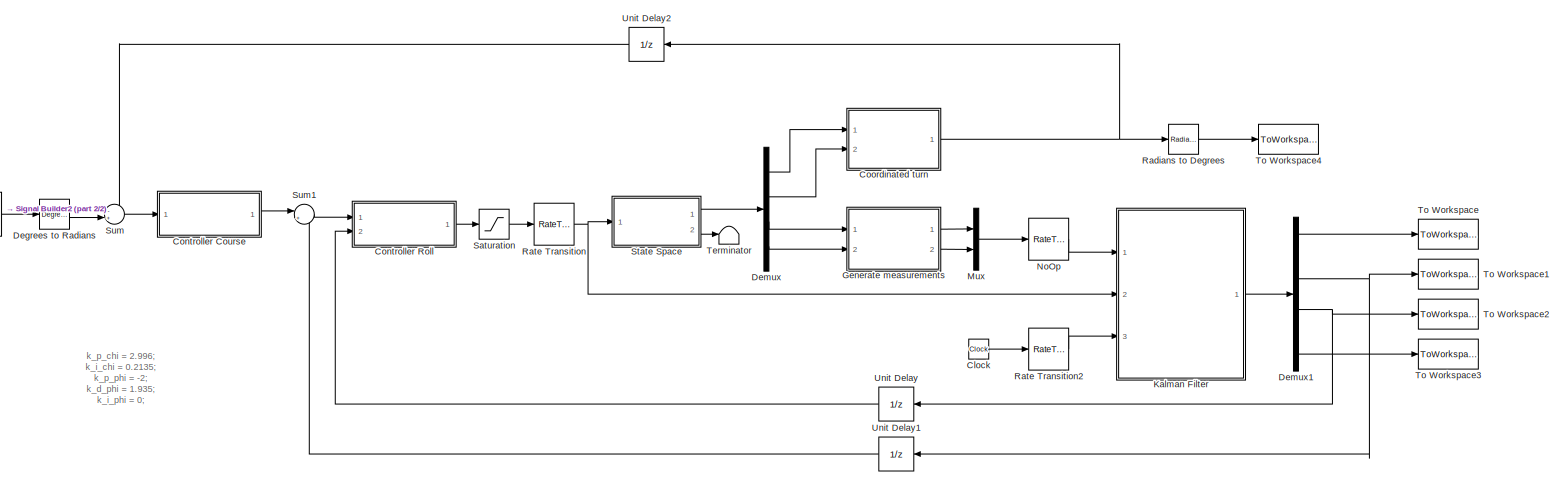
[diagram: root canvas - part 1/2, most of the canvas]
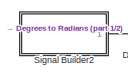
[diagram: root canvas - part 2/2, middle left region]
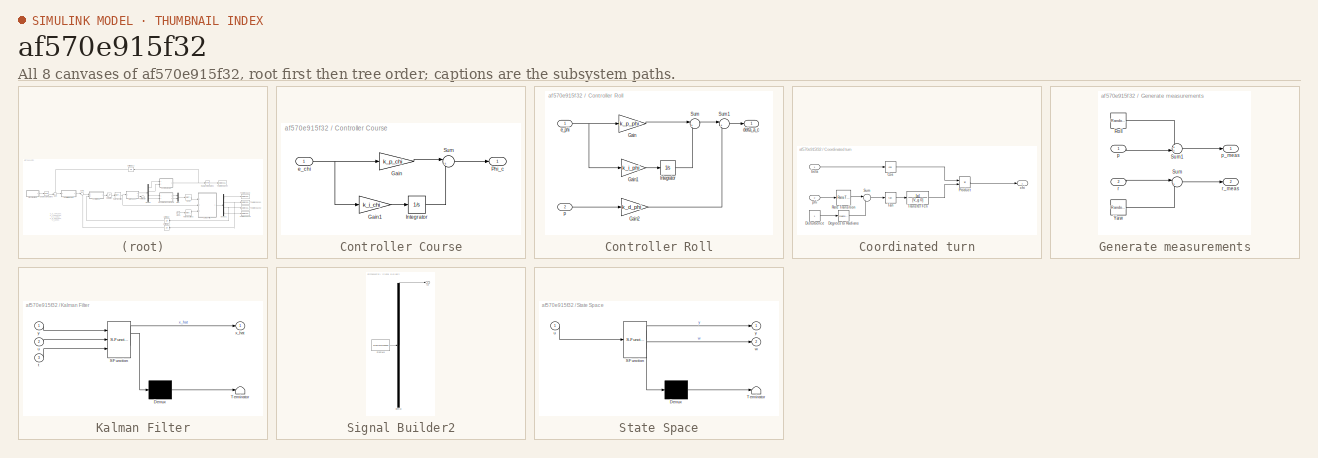
[diagram: thumbnail index - all 8 canvases of the model, root first then tree order]
MODEL slx_af570e915f32
KIND model
CONFIG AbsTol = auto
CONFIG EnableMultiTasking = off
CONFIG FixedStep = auto
CONFIG MaxStep = auto
CONFIG MinStep = auto
CONFIG RelTol = 1e-3
CONFIG SampleTimeConstraint = Unconstrained
CONFIG Solver = VariableStepAuto
CONFIG SolverName = VariableStepAuto
CONFIG StartTime = 0.0
CONFIG StopTime = 200
BLOCK [Clock] Clock
BLOCK [SubSystem] Controller Course
  Ports = [1, 1]
  RequestExecContextInheritance = off
BLOCK [Gain] Controller Course/Gain
  Gain = k_p_chi
  OutDataTypeStr = Inherit: Inherit via internal rule
  ParamDataTypeStr = Inherit: Inherit via internal rule
  SaturateOnIntegerOverflow = off
BLOCK [Gain] Controller Course/Gain1
  Gain = k_i_chi
  OutDataTypeStr = Inherit: Inherit via internal rule
  ParamDataTypeStr = Inherit: Inherit via internal rule
  SaturateOnIntegerOverflow = off
BLOCK [Integrator] Controller Course/Integrator
  Ports = [1, 1]
BLOCK [Outport] Controller Course/Phi_c
  IconDisplay = Port number
BLOCK [Sum] Controller Course/Sum
  IconShape = round
  InputSameDT = off
  Inputs = |++
  OutDataTypeStr = Inherit: Inherit via internal rule
  Ports = [2, 1]
  SaturateOnIntegerOverflow = off
BLOCK [Inport] Controller Course/e_chi
  IconDisplay = Port number
BLOCK [SubSystem] Controller Roll
  Ports = [2, 1]
  RequestExecContextInheritance = off
BLOCK [Gain] Controller Roll/Gain
  Gain = k_p_phi
  OutDataTypeStr = Inherit: Inherit via internal rule
  ParamDataTypeStr = Inherit: Inherit via internal rule
  SaturateOnIntegerOverflow = off
BLOCK [Gain] Controller Roll/Gain1
  Gain = k_i_phi
  OutDataTypeStr = Inherit: Inherit via internal rule
  ParamDataTypeStr = Inherit: Inherit via internal rule
  SaturateOnIntegerOverflow = off
BLOCK [Gain] Controller Roll/Gain2
  Gain = k_d_phi
  OutDataTypeStr = Inherit: Inherit via internal rule
  ParamDataTypeStr = Inherit: Inherit via internal rule
  SaturateOnIntegerOverflow = off
BLOCK [Integrator] Controller Roll/Integrator
  Ports = [1, 1]
BLOCK [Sum] Controller Roll/Sum
  IconShape = round
  InputSameDT = off
  Inputs = |++
  OutDataTypeStr = Inherit: Inherit via internal rule
  Ports = [2, 1]
  SaturateOnIntegerOverflow = off
BLOCK [Sum] Controller Roll/Sum1
  IconShape = round
  InputSameDT = off
  Inputs = |+-
  OutDataTypeStr = Inherit: Inherit via internal rule
  Ports = [2, 1]
  SaturateOnIntegerOverflow = off
BLOCK [Outport] Controller Roll/delta_a_c
  IconDisplay = Port number
BLOCK [Inport] Controller Roll/e_phi
  IconDisplay = Port number
BLOCK [Inport] Controller Roll/p
  IconDisplay = Port number
  Port = 2
BLOCK [SubSystem] Coordinated turn
  Ports = [2, 1]
  RequestExecContextInheritance = off
BLOCK [Trigonometry] Coordinated turn/Cos
  Operator = cos
  Ports = [1, 1]
BLOCK [Reference] Coordinated turn/Degrees to Radians  REF=simulink_extras/Transformations/Degrees to
Radians
  Ports = [1, 1]
  SourceBlock = simulink_extras/Transformations/Degrees to\nRadians
  SourceProductBaseCode = SL
  SourceProductName = Simulink
  SourceType = DegreesToRadians
BLOCK [Constant] Coordinated turn/Disturbence
BLOCK [Product] Coordinated turn/Product
  InputSameDT = off
  OutDataTypeStr = Inherit: Inherit via internal rule
  Ports = [2, 1]
  RndMeth = Floor
  SaturateOnIntegerOverflow = off
BLOCK [RateTransition] Coordinated turn/Rate Transition
BLOCK [Sum] Coordinated turn/Sum
  IconShape = round
  InputSameDT = off
  Inputs = |++
  OutDataTypeStr = Inherit: Inherit via internal rule
  Ports = [2, 1]
  SaturateOnIntegerOverflow = off
BLOCK [Trigonometry] Coordinated turn/Tan
  Operator = tan
  Ports = [1, 1]
BLOCK [TransferFcn] Coordinated turn/Transfer Fcn
  Denominator = [V_g 0]
  Numerator = [g]
BLOCK [Inport] Coordinated turn/beta
  IconDisplay = Port number
BLOCK [Outport] Coordinated turn/chi
  IconDisplay = Port number
BLOCK [Inport] Coordinated turn/phi
  IconDisplay = Port number
  Port = 2
BLOCK [Reference] Degrees to Radians  REF=simulink_extras/Transformations/Degrees to
Radians
  Ports = [1, 1]
  SourceBlock = simulink_extras/Transformations/Degrees to\nRadians
  SourceProductBaseCode = SL
  SourceProductName = Simulink
  SourceType = DegreesToRadians
BLOCK [Demux] Demux
  DisplayOption = bar
  Ports = [1, 4]
BLOCK [Demux] Demux1
  DisplayOption = bar
  Ports = [1, 4]
BLOCK [SubSystem] Generate measurements
  Ports = [2, 2]
  RequestExecContextInheritance = off
BLOCK [RandomNumber] Generate measurements/Roll
  SampleTime = 0.01
  Variance = (0.2*pi/180)^2
BLOCK [Sum] Generate measurements/Sum
  IconShape = round
  InputSameDT = off
  Inputs = |++
  OutDataTypeStr = Inherit: Inherit via internal rule
  Ports = [2, 1]
  SaturateOnIntegerOverflow = off
BLOCK [Sum] Generate measurements/Sum1
  IconShape = round
  InputSameDT = off
  Inputs = ++|
  OutDataTypeStr = Inherit: Inherit via internal rule
  Ports = [2, 1]
  SaturateOnIntegerOverflow = off
BLOCK [RandomNumber] Generate measurements/Yaw
  SampleTime = 0.01
  Variance = (0.2*pi/180)^2
BLOCK [Inport] Generate measurements/p
  IconDisplay = Port number
BLOCK [Outport] Generate measurements/p_meas
  IconDisplay = Port number
BLOCK [Inport] Generate measurements/r
  IconDisplay = Port number
  Port = 2
BLOCK [Outport] Generate measurements/r_meas
  IconDisplay = Port number
  Port = 2
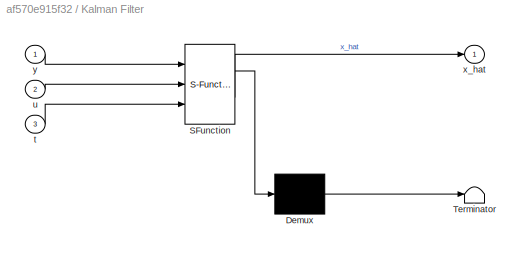
BLOCK [SubSystem] Kalman Filter
  ErrorFcn = Stateflow.Translate.translate
  PermitHierarchicalResolution = ExplicitOnly
  Ports = [3, 1]
  RequestExecContextInheritance = off
  SFBlockType = MATLAB Function
  TreatAsAtomicUnit = on
BLOCK [Demux] Kalman Filter/ Demux 
  Outputs = 1
  Ports = [1, 1]
BLOCK [S-Function] Kalman Filter/ SFunction 
  EnableBusSupport = on
  FunctionName = sf_sfun
  PortCounts = [3 2]
  Ports = [3, 2]
  SFcnIsStateOwnerBlock = off
  SFunctionDeploymentMode = off
  Tag = Stateflow S-Function KF 1
BLOCK [Terminator] Kalman Filter/ Terminator 
BLOCK [Inport] Kalman Filter/t
  IconDisplay = Port number
  Port = 3
BLOCK [Inport] Kalman Filter/u
  IconDisplay = Port number
  Port = 2
BLOCK [Outport] Kalman Filter/x_hat
  IconDisplay = Port number
BLOCK [Inport] Kalman Filter/y
  IconDisplay = Port number
BLOCK [Mux] Mux
  DisplayOption = bar
  Inputs = 2
  Ports = [2, 1]
BLOCK [RateTransition] NoOp
BLOCK [Reference] Radians to Degrees  REF=simulink_extras/Transformations/Radians
to Degrees
  Ports = [1, 1]
  SourceBlock = simulink_extras/Transformations/Radians\nto Degrees
  SourceProductBaseCode = SL
  SourceProductName = Simulink
  SourceType = RadiansToDegrees
BLOCK [RateTransition] Rate Transition
BLOCK [RateTransition] Rate Transition2
BLOCK [Saturate] Saturation
  InputPortMap = u0
  LowerLimit = -30/180*pi
  Ports = [1, 1]
  UpperLimit = 30/180*pi
BLOCK [SubSystem] Signal Builder2
  ClipboardFcn = sigbuilder_block('clipboard');
  CloseFcn = sigbuilder_block('close');
  ContinueFcn = sigbuilder_block('continue');
  CopyFcn = sigbuilder_block('copy');
  DeleteFcn = sigbuilder_block('delete');
  LoadFcn = sigbuilder_block('load');
  MaskHideContents = on
  ModelCloseFcn = sigbuilder_block('modelClose');
  NameChangeFcn = sigbuilder_block('namechange');
  OpenFcn = sigbuilder_block('open',[411 163.2 550.8 400.2 ]);
  PauseFcn = sigbuilder_block('pause');
  Ports = [0, 1]
  PreSaveFcn = sigbuilder_block('preSave');
  RequestExecContextInheritance = off
  StartFcn = sigbuilder_block('start');
  StopFcn = sigbuilder_block('stop');
  Tag = STV Subsys
BLOCK [Demux] Signal Builder2/Demux
  Outputs = 1
  Ports = [1, 1]
  Tag = STV Demux
BLOCK [FromWorkspace] Signal Builder2/FromWs
  SampleTime = 0
  Tag = STV FromWs
  VariableName = tuvar
  ZeroCross = on
BLOCK [Outport] Signal Builder2/ref
  IconDisplay = Port number
  Tag = STV Outport
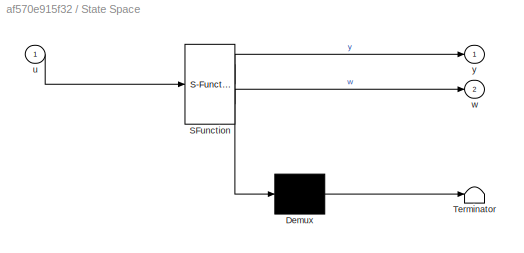
BLOCK [SubSystem] State Space
  ErrorFcn = Stateflow.Translate.translate
  PermitHierarchicalResolution = ExplicitOnly
  Ports = [1, 2]
  RequestExecContextInheritance = off
  SFBlockType = MATLAB Function
  TreatAsAtomicUnit = on
BLOCK [Demux] State Space/ Demux 
  Outputs = 1
  Ports = [1, 1]
BLOCK [S-Function] State Space/ SFunction 
  EnableBusSupport = on
  FunctionName = sf_sfun
  PortCounts = [1 3]
  Ports = [1, 3]
  SFcnIsStateOwnerBlock = off
  SFunctionDeploymentMode = off
  Tag = Stateflow S-Function KF 2
BLOCK [Terminator] State Space/ Terminator 
BLOCK [Inport] State Space/u
  IconDisplay = Port number
BLOCK [Outport] State Space/w
  IconDisplay = Port number
  Port = 2
BLOCK [Outport] State Space/y
  IconDisplay = Port number
BLOCK [Sum] Sum
  IconShape = round
  InputSameDT = off
  Inputs = -+|
  OutDataTypeStr = Inherit: Inherit via internal rule
  Ports = [2, 1]
  SaturateOnIntegerOverflow = off
BLOCK [Sum] Sum1
  IconShape = round
  InputSameDT = off
  Inputs = |+-
  OutDataTypeStr = Inherit: Inherit via internal rule
  Ports = [2, 1]
  SaturateOnIntegerOverflow = off
BLOCK [Terminator] Terminator
BLOCK [ToWorkspace] To Workspace
  FixptAsFi = on
  MaxDataPoints = inf
  Ports = [1]
  SampleTime = -1
  SaveFormat = Timeseries
  VariableName = beta_hat
BLOCK [ToWorkspace] To Workspace1
  FixptAsFi = on
  MaxDataPoints = inf
  Ports = [1]
  SampleTime = -1
  SaveFormat = Timeseries
  VariableName = phi_hat
BLOCK [ToWorkspace] To Workspace2
  FixptAsFi = on
  MaxDataPoints = inf
  Ports = [1]
  SampleTime = -1
  SaveFormat = Timeseries
  VariableName = p_hat
BLOCK [ToWorkspace] To Workspace3
  FixptAsFi = on
  MaxDataPoints = inf
  Ports = [1]
  SampleTime = -1
  SaveFormat = Timeseries
  VariableName = r_hat
BLOCK [ToWorkspace] To Workspace4
  FixptAsFi = on
  MaxDataPoints = inf
  Ports = [1]
  SampleTime = -1
  SaveFormat = Timeseries
  VariableName = chi
BLOCK [UnitDelay] Unit Delay
  HasFrameUpgradeWarning = on
  SampleTime = -1
BLOCK [UnitDelay] Unit Delay1
  HasFrameUpgradeWarning = on
  SampleTime = -1
BLOCK [UnitDelay] Unit Delay2
  HasFrameUpgradeWarning = on
  SampleTime = -1
ANNOTATION (root): k_p_chi = 2.996; k_i_chi = 0.2135; k_p_phi = -2; k_d_phi = 1.935; k_i_phi = 0; g = 9.81; V_a = 580/3.6; V_g = V_a;
LINE Clock:1 -> Rate Transition2:1
LINE Controller Course/Gain1:1 -> Controller Course/Integrator:1
LINE Controller Course/Gain:1 -> Controller Course/Sum:1
LINE Controller Course/Integrator:1 -> Controller Course/Sum:2
LINE Controller Course/Sum:1 -> Controller Course/Phi_c:1
NET Controller Course/e_chi:1 -> Controller Course/Gain1:1, Controller Course/Gain:1
LINE Controller Course:1 -> Sum1:1
LINE Controller Roll/Gain1:1 -> Controller Roll/Integrator:1
LINE Controller Roll/Gain2:1 -> Controller Roll/Sum1:2
LINE Controller Roll/Gain:1 -> Controller Roll/Sum:1
LINE Controller Roll/Integrator:1 -> Controller Roll/Sum:2
LINE Controller Roll/Sum1:1 -> Controller Roll/delta_a_c:1
LINE Controller Roll/Sum:1 -> Controller Roll/Sum1:1
NET Controller Roll/e_phi:1 -> Controller Roll/Gain1:1, Controller Roll/Gain:1
LINE Controller Roll/p:1 -> Controller Roll/Gain2:1
LINE Controller Roll:1 -> Saturation:1
LINE Coordinated turn/Cos:1 -> Coordinated turn/Product:1
LINE Coordinated turn/Degrees to Radians:1 -> Coordinated turn/Sum:2
LINE Coordinated turn/Disturbence:1 -> Coordinated turn/Degrees to Radians:1
LINE Coordinated turn/Product:1 -> Coordinated turn/chi:1
LINE Coordinated turn/Rate Transition:1 -> Coordinated turn/Sum:1
LINE Coordinated turn/Sum:1 -> Coordinated turn/Tan:1
LINE Coordinated turn/Tan:1 -> Coordinated turn/Transfer Fcn:1
LINE Coordinated turn/Transfer Fcn:1 -> Coordinated turn/Product:2
LINE Coordinated turn/beta:1 -> Coordinated turn/Cos:1
LINE Coordinated turn/phi:1 -> Coordinated turn/Rate Transition:1
NET Coordinated turn:1 -> Radians to Degrees:1, Unit Delay2:1
LINE Degrees to Radians:1 -> Sum:2
LINE Demux1:1 -> To Workspace:1
NET Demux1:2 -> To Workspace1:1, Unit Delay1:1
NET Demux1:3 -> To Workspace2:1, Unit Delay:1
LINE Demux1:4 -> To Workspace3:1
LINE Demux:1 -> Coordinated turn:1
LINE Demux:2 -> Coordinated turn:2
LINE Demux:3 -> Generate measurements:1
LINE Demux:4 -> Generate measurements:2
LINE Generate measurements/Roll:1 -> Generate measurements/Sum1:1
LINE Generate measurements/Sum1:1 -> Generate measurements/p_meas:1
LINE Generate measurements/Sum:1 -> Generate measurements/r_meas:1
LINE Generate measurements/Yaw:1 -> Generate measurements/Sum:2
LINE Generate measurements/p:1 -> Generate measurements/Sum1:2
LINE Generate measurements/r:1 -> Generate measurements/Sum:1
LINE Generate measurements:1 -> Mux:1
LINE Generate measurements:2 -> Mux:2
LINE Kalman Filter:1 -> Demux1:1
LINE Mux:1 -> NoOp:1
LINE NoOp:1 -> Kalman Filter:1
LINE Radians to Degrees:1 -> To Workspace4:1
LINE Rate Transition2:1 -> Kalman Filter:3
NET Rate Transition:1 -> Kalman Filter:2, State Space:1
LINE Saturation:1 -> Rate Transition:1
LINE Signal Builder2:1 -> Degrees to Radians:1
LINE State Space:1 -> Demux:1
LINE State Space:2 -> Terminator:1
LINE Sum1:1 -> Controller Roll:1
LINE Sum:1 -> Controller Course:1
LINE Unit Delay1:1 -> Sum1:2
LINE Unit Delay2:1 -> Sum:1
LINE Unit Delay:1 -> Controller Roll:2
note: NET lines group one-source signal fan-out (src -> all destinations, sorted); 1:1 wires keep LINE
CHART Kalman Filter states=1 transitions=1
  STATE_LABEL 'eML_blk_kernel()'
  STATE_LABEL 'SCRIPT:\nfunction x_hat = Kalman_filter(y,u,t)\n\npersistent xhat;\npersistent xbar;\npersistent P;\n\n%% KF parameters\nh = 0.01;\nA_k = [-0.322, 0.052, 0.028, -1.12;\n       0, 0, 1, -0.001;   \n       -10.6, 0, -2.87, 0.46;\n       6.87, 0, -0.04, -0.32];\nB_k = [0.002; 0; -0.65; -0.02];\nC_k = [0, 0, 1, 0;\n       0, 0, 0, 1];\nE_k = eye(4);\nI = eye(4);\nA_d = I+h*A_k;\nB_d = h*B_k;\nE_d = E_k;\nQ = h*10^(-6)*dia...<+702ch>'
CHART State Space states=1 transitions=1
  STATE_LABEL 'eML_blk_kernel()'
  STATE_LABEL 'SCRIPT:\nfunction [y,w] = state_space(u)\n% Generate the output of the state space\n\n    % Persistent variables to be kept between function calls\n    persistent counter; % Variable for checking if it is the first iteration.\n    persistent x;       % The state x\n    \n   % The next line is necessary for generating unique process noise for every simulation.\n   % Otherwise, the noise will be equal every ...<+1601ch>'
